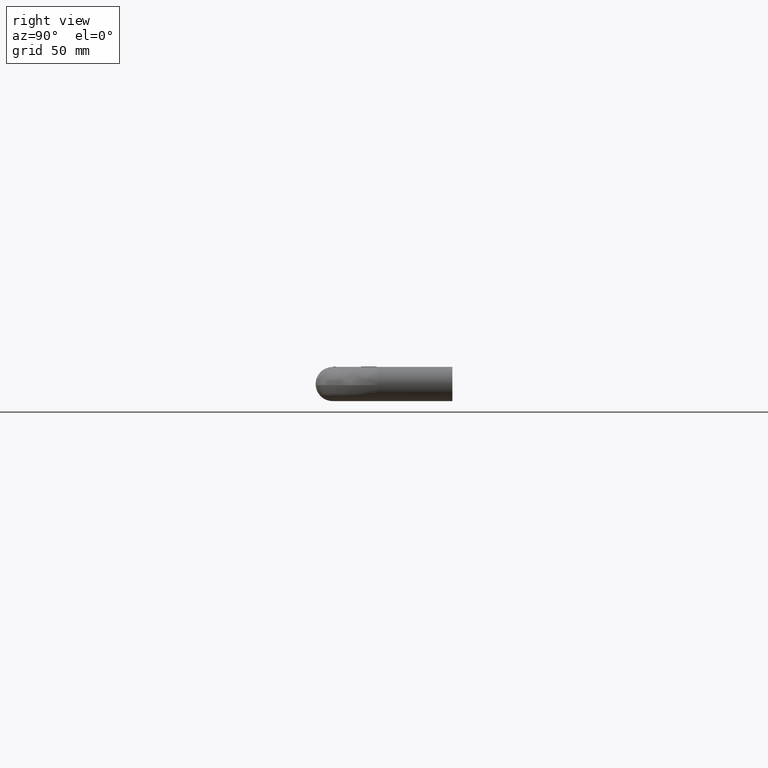
[diagram: clean part render]
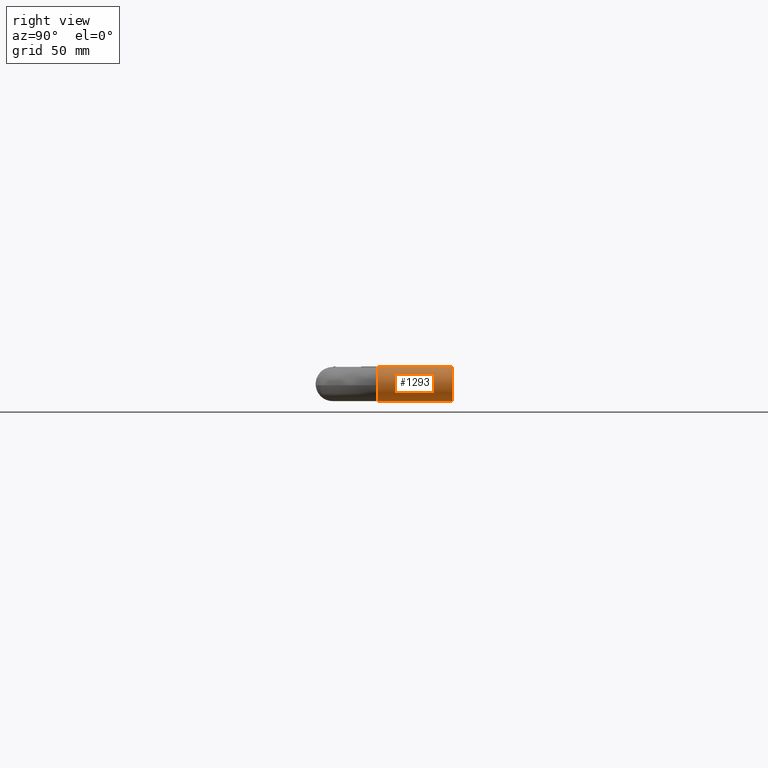
[diagram: same view with one face highlighted and labeled with its STEP entity id]
A machine part, right view. The second image highlights one B-rep face of the part: STEP entity #1293.
In plain terms, the highlighted face is a freeform B-spline surface patch.
Its self-contained STEP definition (entity closure, byte-faithful):
#1148=CARTESIAN_POINT('',(495.604775320105320,-56.375055270261825,11.701794734708219));
#1149=CARTESIAN_POINT('',(497.362631853557450,-56.375055270261825,12.362050242064381));
#1150=CARTESIAN_POINT('',(499.236893255814320,-56.375055270261832,12.476684980273340));
#1151=CARTESIAN_POINT('',(511.713578236087640,-56.375055270261839,13.239791724459048));
#1152=CARTESIAN_POINT('',(512.476684980273380,-56.375055270261832,0.763106744185712));
#1153=CARTESIAN_POINT('',(513.239791724459110,-56.375055270261839,-11.713578236087622));
#1154=CARTESIAN_POINT('',(500.763106744185680,-56.375055270261832,-12.476684980273340));
#1155=CARTESIAN_POINT('',(488.286421763912410,-56.375055270261839,-13.239791724459048));
#1156=CARTESIAN_POINT('',(487.523315019726680,-56.375055270261832,-0.763106744185712));
#1157=CARTESIAN_POINT('',(495.604775320105320,1.409376381756545,11.701794734708219));
#1158=CARTESIAN_POINT('',(497.362631853557450,1.409376381756544,12.362050242064381));
#1159=CARTESIAN_POINT('',(499.236893255814320,1.409376381756545,12.476684980273340));
#1160=CARTESIAN_POINT('',(511.713578236087640,1.409376381756545,13.239791724459048));
#1161=CARTESIAN_POINT('',(512.476684980273380,1.409376381756545,0.763106744185712));
#1162=CARTESIAN_POINT('',(513.239791724459110,1.409376381756545,-11.713578236087622));
#1163=CARTESIAN_POINT('',(500.763106744185680,1.409376381756545,-12.476684980273340));
#1164=CARTESIAN_POINT('',(488.286421763912410,1.409376381756545,-13.239791724459048));
#1165=CARTESIAN_POINT('',(487.523315019726680,1.409376381756545,-0.763106744185712));
#1173=(BOUNDED_SURFACE()B_SPLINE_SURFACE(2,1,((#1148,#1157),(#1149,#1158),(#1150,#1159),(#1151,#1160),(#1152,#1161),(#1153,#1162),(#1154,#1163),(#1155,#1164),(#1156,#1165)),.UNSPECIFIED.,.F.,.F.,.U.)B_SPLINE_SURFACE_WITH_KNOTS((3,2,2,2,3),(2,2),(0.0,4.142135623730961,24.852813742385770,45.563491861040568,66.274169979695372),(0.0,57.784431652018377),.UNSPECIFIED.)GEOMETRIC_REPRESENTATION_ITEM()RATIONAL_B_SPLINE_SURFACE(((0.906274169979695,0.906274169979695),(0.941421356237309,0.941421356237309),(1.0,1.0),(0.707106781186548,0.707106781186548),(1.0,1.0),(0.707106781186548,0.707106781186548),(1.0,1.0),(0.707106781186548,0.707106781186548),(1.0,1.0)))REPRESENTATION_ITEM('')SURFACE());
#1174=CARTESIAN_POINT('',(495.604775319900800,-55.000001781185340,11.701794734633131));
#1175=VERTEX_POINT('',#1174);
#1176=CARTESIAN_POINT('',(500.0,-55.0,12.500000000000000));
#1177=VERTEX_POINT('',#1176);
#1178=CARTESIAN_POINT('',(495.604775319900800,-55.000001781185340,11.701794734633133));
#1179=CARTESIAN_POINT('',(497.729907673939750,-55.000000030754833,12.500000000000060));
#1180=CARTESIAN_POINT('',(500.0,-55.0,12.500000000000000));
#1188=(BOUNDED_CURVE()B_SPLINE_CURVE(2,(#1178,#1179,#1180),.UNSPECIFIED.,.F.,.U.)B_SPLINE_CURVE_WITH_KNOTS((3,3),(0.940284170893386,1.0),.UNSPECIFIED.)CURVE()GEOMETRIC_REPRESENTATION_ITEM()RATIONAL_B_SPLINE_CURVE((0.893499554629007,0.930038554395400,1.0))REPRESENTATION_ITEM(''));
#1189=EDGE_CURVE('',#1175,#1177,#1188,.T.);
#1190=ORIENTED_EDGE('',*,*,#1189,.T.);
#1191=CARTESIAN_POINT('',(512.469570613121500,-55.000000120312741,-0.871670077700290));
#1192=VERTEX_POINT('',#1191);
#1193=CARTESIAN_POINT('',(500.0,-55.0,12.500000000000000));
#1194=CARTESIAN_POINT('',(512.500000000000000,-55.0,12.499999999999998));
#1195=CARTESIAN_POINT('',(512.500000000000000,-55.0,0.0));
#1196=CARTESIAN_POINT('',(512.500000000000000,-55.0,-0.436366173054179));
#1197=CARTESIAN_POINT('',(512.469570613121500,-55.000000120312741,-0.871670077700290));
#1205=(BOUNDED_CURVE()B_SPLINE_CURVE(2,(#1193,#1194,#1195,#1196,#1197),.UNSPECIFIED.,.F.,.U.)B_SPLINE_CURVE_WITH_KNOTS((3,2,3),(0.0,0.250000000000000,0.262166374605669),.UNSPECIFIED.)CURVE()GEOMETRIC_REPRESENTATION_ITEM()RATIONAL_B_SPLINE_CURVE((1.0,0.707106781186547,1.0,0.985746205521821,0.972879747069032))REPRESENTATION_ITEM(''));
#1206=EDGE_CURVE('',#1177,#1192,#1205,.T.);
#1207=ORIENTED_EDGE('',*,*,#1206,.T.);
#1208=CARTESIAN_POINT('',(499.842976333824480,-55.000053922206661,-12.499013703712871));
#1209=VERTEX_POINT('',#1208);
#1210=CARTESIAN_POINT('',(512.469570613121500,-55.000000120312741,-0.871670077700290));
#1211=CARTESIAN_POINT('',(512.007527959377740,-54.999987700433273,-7.481365251185855));
#1212=CARTESIAN_POINT('',(506.468278289659510,-55.000015397909522,-12.582246599409430));
#1213=CARTESIAN_POINT('',(499.842976333824480,-55.000053922206661,-12.499013703712871));
#1214=B_SPLINE_CURVE_WITH_KNOTS('',3,(#1210,#1211,#1212,#1213),.UNSPECIFIED.,.F.,.U.,(4,4),(0.0,19.877474268726420),.UNSPECIFIED.);
#1215=EDGE_CURVE('',#1192,#1209,#1214,.T.);
#1216=ORIENTED_EDGE('',*,*,#1215,.T.);
#1217=CARTESIAN_POINT('',(487.523315019831100,-55.000028776071389,-0.763106745858294));
#1218=VERTEX_POINT('',#1217);
#1219=CARTESIAN_POINT('',(499.842976333824540,-55.000053922206661,-12.499013703712865));
#1220=CARTESIAN_POINT('',(488.232192360559850,-55.000053764893281,-12.353148765097078));
#1221=CARTESIAN_POINT('',(487.523315019831100,-55.000028776071389,-0.763106745858294));
#1229=(BOUNDED_CURVE()B_SPLINE_CURVE(2,(#1219,#1220,#1221),.UNSPECIFIED.,.F.,.U.)B_SPLINE_CURVE_WITH_KNOTS((3,3),(0.502214974771662,0.739332962194921),.UNSPECIFIED.)CURVE()GEOMETRIC_REPRESENTATION_ITEM()RATIONAL_B_SPLINE_CURVE((0.994855974229849,0.721977549623078,0.976072041572370))REPRESENTATION_ITEM(''));
#1230=EDGE_CURVE('',#1209,#1218,#1229,.T.);
#1231=ORIENTED_EDGE('',*,*,#1230,.T.);
#1232=CARTESIAN_POINT('',(487.523315019847300,-1.110223E-015,-0.763106746157085));
#1233=VERTEX_POINT('',#1232);
#1234=CARTESIAN_POINT('',(487.523315019831100,-55.000028776071389,-0.763106745858294));
#1235=CARTESIAN_POINT('',(487.523315019847300,-1.110223E-015,-0.763106746157085));
#1236=QUASI_UNIFORM_CURVE('',1,(#1234,#1235),.UNSPECIFIED.,.F.,.U.);
#1237=EDGE_CURVE('',#1218,#1233,#1236,.T.);
#1238=ORIENTED_EDGE('',*,*,#1237,.T.);
#1239=CARTESIAN_POINT('',(500.0,0.0,-12.500000000000000));
#1240=VERTEX_POINT('',#1239);
#1241=CARTESIAN_POINT('',(500.0,0.0,-12.500000000000000));
#1242=CARTESIAN_POINT('',(488.241174167401650,0.0,-12.499999999999998));
#1243=CARTESIAN_POINT('',(487.523315019847250,-1.110223E-015,-0.763106746157085));
#1251=(BOUNDED_CURVE()B_SPLINE_CURVE(2,(#1241,#1242,#1243),.UNSPECIFIED.,.F.,.U.)B_SPLINE_CURVE_WITH_KNOTS((3,3),(0.500000000000000,0.739332962187442),.UNSPECIFIED.)CURVE()GEOMETRIC_REPRESENTATION_ITEM()RATIONAL_B_SPLINE_CURVE((1.0,0.719603993347047,0.976072041556341))REPRESENTATION_ITEM(''));
#1252=EDGE_CURVE('',#1240,#1233,#1251,.T.);
#1253=ORIENTED_EDGE('',*,*,#1252,.F.);
#1254=CARTESIAN_POINT('',(500.0,0.0,12.500000000000000));
#1255=VERTEX_POINT('',#1254);
#1256=CARTESIAN_POINT('',(500.0,0.0,12.500000000000000));
#1257=CARTESIAN_POINT('',(512.500000000000000,0.0,12.499999999999998));
#1258=CARTESIAN_POINT('',(512.500000000000000,0.0,0.0));
#1259=CARTESIAN_POINT('',(512.500000000000000,0.0,-12.499999999999998));
#1260=CARTESIAN_POINT('',(500.0,0.0,-12.500000000000000));
#1268=(BOUNDED_CURVE()B_SPLINE_CURVE(2,(#1256,#1257,#1258,#1259,#1260),.UNSPECIFIED.,.F.,.U.)B_SPLINE_CURVE_WITH_KNOTS((3,2,3),(0.0,0.250000000000000,0.500000000000000),.UNSPECIFIED.)CURVE()GEOMETRIC_REPRESENTATION_ITEM()RATIONAL_B_SPLINE_CURVE((1.0,0.707106781186547,1.0,0.707106781186547,1.0))REPRESENTATION_ITEM(''));
#1269=EDGE_CURVE('',#1255,#1240,#1268,.T.);
#1270=ORIENTED_EDGE('',*,*,#1269,.F.);
#1271=CARTESIAN_POINT('',(495.604775319901420,-1.225041E-015,11.701794734631600));
#1272=VERTEX_POINT('',#1271);
#1273=CARTESIAN_POINT('',(495.604775319901480,-1.225041E-015,11.701794734631607));
#1274=CARTESIAN_POINT('',(497.729907673940430,0.0,12.499999999999995));
#1275=CARTESIAN_POINT('',(500.0,0.0,12.500000000000000));
#1283=(BOUNDED_CURVE()B_SPLINE_CURVE(2,(#1273,#1274,#1275),.UNSPECIFIED.,.F.,.U.)B_SPLINE_CURVE_WITH_KNOTS((3,3),(0.940284170893403,1.0),.UNSPECIFIED.)CURVE()GEOMETRIC_REPRESENTATION_ITEM()RATIONAL_B_SPLINE_CURVE((0.893499554629027,0.930038554395419,1.0))REPRESENTATION_ITEM(''));
#1284=EDGE_CURVE('',#1272,#1255,#1283,.T.);
#1285=ORIENTED_EDGE('',*,*,#1284,.F.);
#1286=CARTESIAN_POINT('',(495.604775319900800,-55.000001781185340,11.701794734633131));
#1287=CARTESIAN_POINT('',(495.604775319901420,-1.225041E-015,11.701794734631600));
#1288=QUASI_UNIFORM_CURVE('',1,(#1286,#1287),.UNSPECIFIED.,.F.,.U.);
#1289=EDGE_CURVE('',#1175,#1272,#1288,.T.);
#1290=ORIENTED_EDGE('',*,*,#1289,.F.);
#1291=EDGE_LOOP('',(#1190,#1207,#1216,#1231,#1238,#1253,#1270,#1285,#1290));
#1292=FACE_OUTER_BOUND('',#1291,.T.);
#1293=ADVANCED_FACE('',(#1292),#1173,.T.);